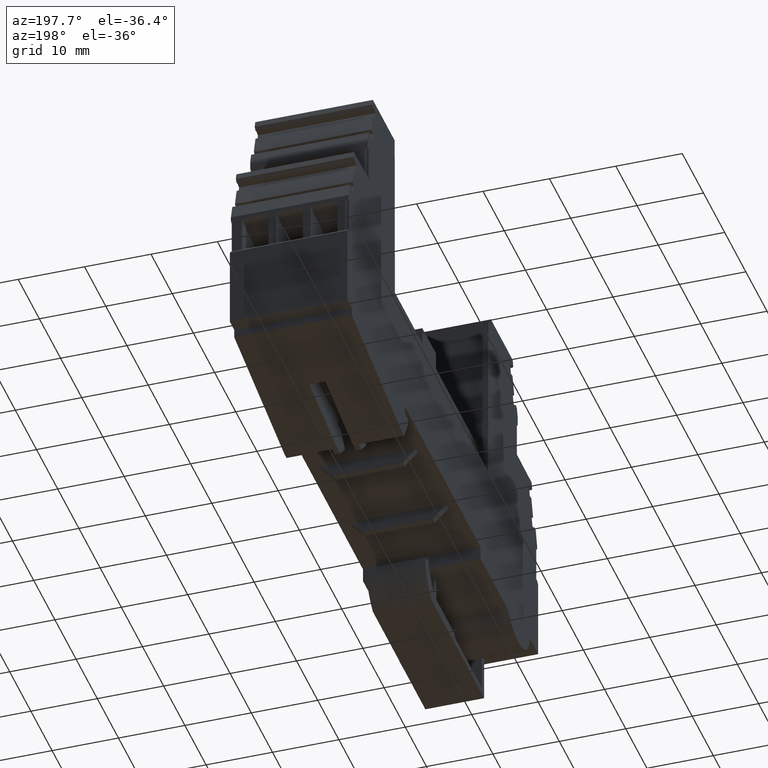
[diagram: clean part render]
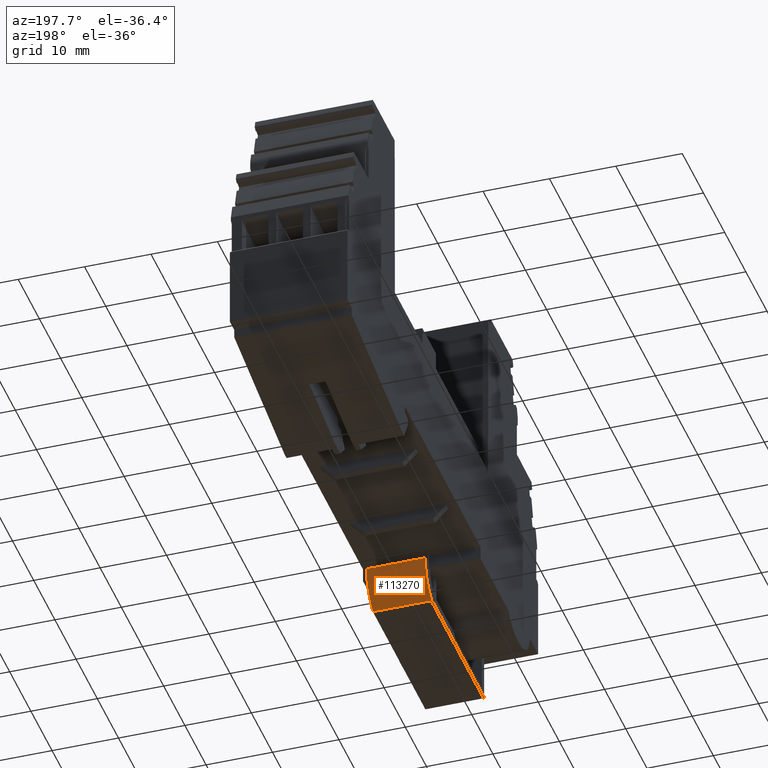
[diagram: same view with one face highlighted and labeled with its STEP entity id]
A machine part, auxiliary view. The second image highlights one B-rep face of the part: STEP entity #113270.
In plain terms, the highlighted cylindrical surface (partial cylindrical patch) has radius 6.5 mm, axis along (1, -0, -0).
Its self-contained STEP definition (entity closure, byte-faithful):
#111080=CARTESIAN_POINT('',(53.3413510790277,15.9079401594982,-32.4));
#111090=VERTEX_POINT('',#111080);
#111120=CARTESIAN_POINT('',(46.8413512925594,15.906274052443,-32.4));
#111130=DIRECTION('',(8.99708997865547E-21,-2.60974393670053E-32,1.));
#111140=DIRECTION('',(1.,-2.41993924898765E-16,-8.99708997865547E-21));
#111150=AXIS2_PLACEMENT_3D('',#111120,#111130,#111140);
#111160=CIRCLE('',#111150,6.5);
#111170=CARTESIAN_POINT('',(50.3054529076972,10.406274052443,-32.4));
#111180=VERTEX_POINT('',#111170);
#111190=EDGE_CURVE('',#111180,#111090,#111160,.T.);
#111740=CARTESIAN_POINT('',(53.3413510790277,15.9079401594982,-41.25));
#111750=VERTEX_POINT('',#111740);
#112850=CARTESIAN_POINT('',(50.3054529076972,10.406274052443,-41.25));
#112860=VERTEX_POINT('',#112850);
#112890=CARTESIAN_POINT('',(46.8413512925594,15.906274052443,-41.25));
#112900=DIRECTION('',(8.99708997865547E-21,-2.60974393670053E-32,1.));
#112910=DIRECTION('',(1.,-2.41993924898765E-16,-8.99708997865547E-21));
#112920=AXIS2_PLACEMENT_3D('',#112890,#112900,#112910);
#112930=CIRCLE('',#112920,6.5);
#112940=EDGE_CURVE('',#112860,#111750,#112930,.T.);
#113060=CARTESIAN_POINT('',(46.8413512925594,15.906274052443,-49.));
#113070=DIRECTION('',(8.99708997865547E-21,-2.60974393670053E-32,1.));
#113080=DIRECTION('',(1.,-2.41993924898765E-16,-8.99708997865547E-21));
#113090=AXIS2_PLACEMENT_3D('',#113060,#113070,#113080);
#113100=CYLINDRICAL_SURFACE('',#113090,6.5);
#113110=CARTESIAN_POINT('',(53.3413510790277,15.9079401594982,-49.));
#113120=DIRECTION('',(8.99708997865547E-21,-2.60974393670053E-32,1.));
#113130=VECTOR('',#113120,1.);
#113140=LINE('',#113110,#113130);
#113150=EDGE_CURVE('',#111750,#111090,#113140,.T.);
#113160=ORIENTED_EDGE('',*,*,#113150,.T.);
#113170=ORIENTED_EDGE('',*,*,#112940,.T.);
#113180=CARTESIAN_POINT('',(50.3054529076972,10.406274052443,-49.));
#113190=DIRECTION('',(8.99708997865547E-21,-2.60974393670053E-32,1.));
#113200=VECTOR('',#113190,1.);
#113210=LINE('',#113180,#113200);
#113220=EDGE_CURVE('',#112860,#111180,#113210,.T.);
#113230=ORIENTED_EDGE('',*,*,#113220,.F.);
#113240=ORIENTED_EDGE('',*,*,#111190,.F.);
#113250=EDGE_LOOP('',(#113240,#113230,#113170,#113160));
#113260=FACE_OUTER_BOUND('',#113250,.T.);
#113270=ADVANCED_FACE('',(#113260),#113100,.T.);